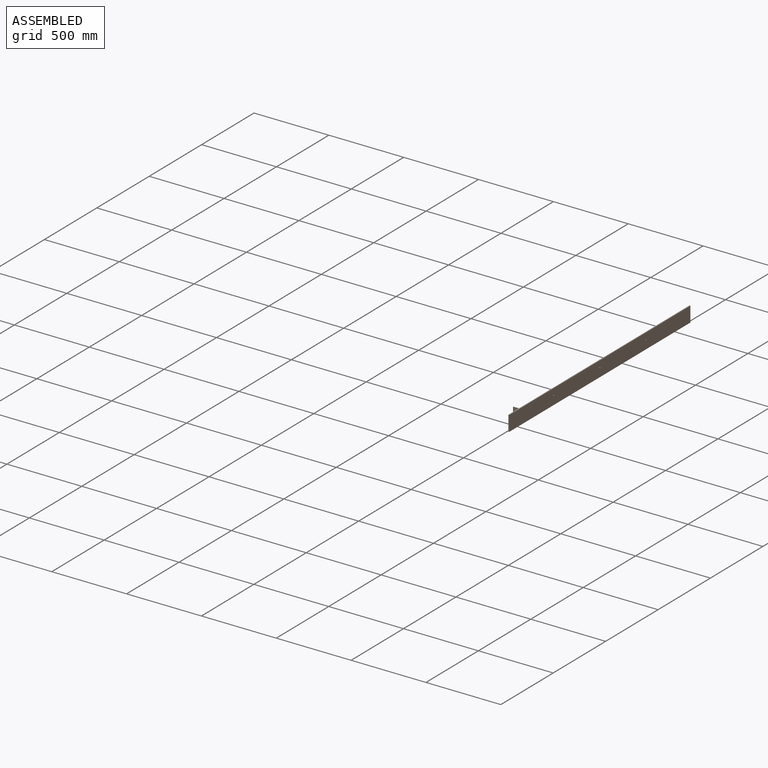
[diagram: assembled view]
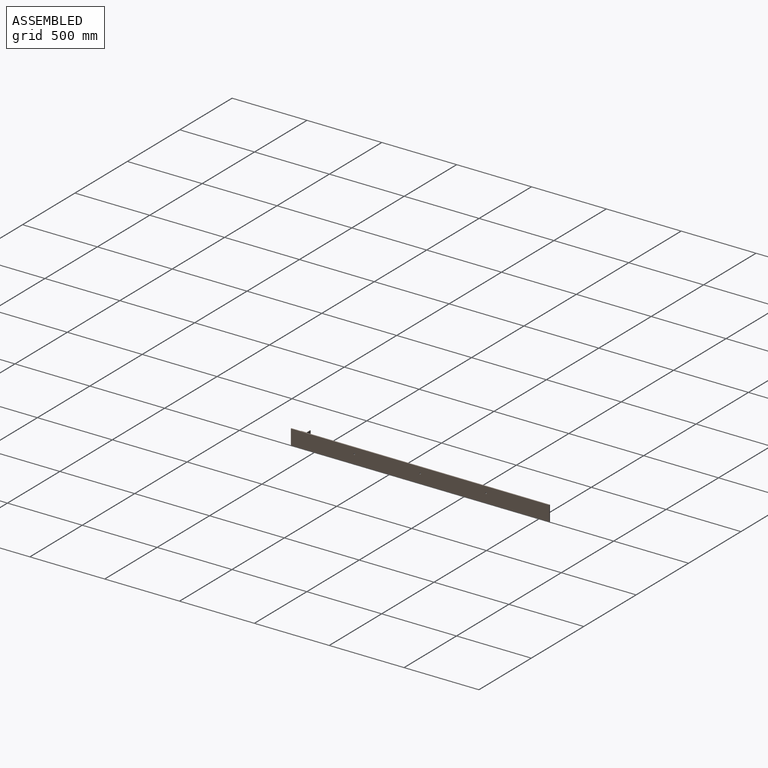
[diagram: assembled view, second angle]
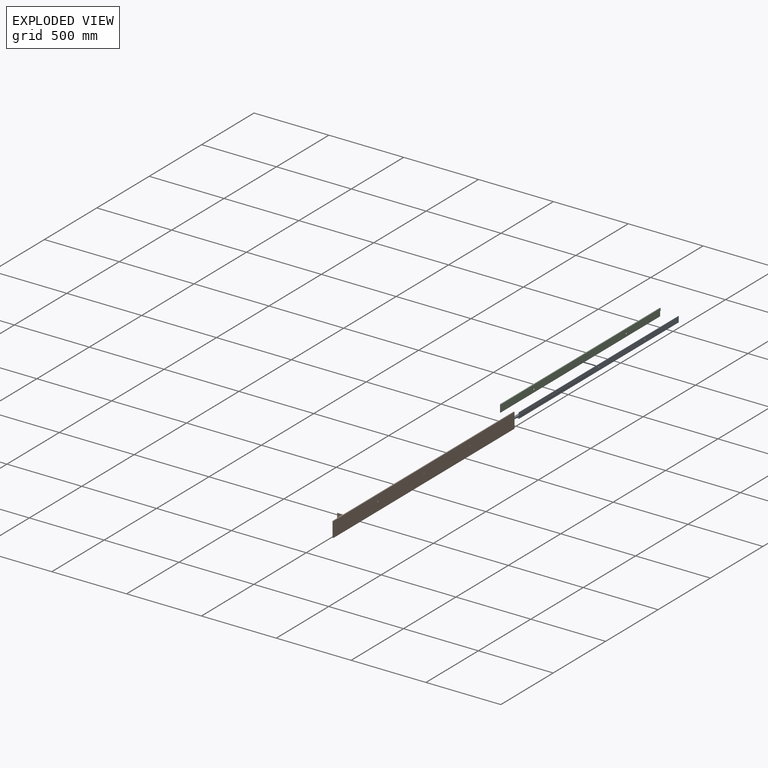
[diagram: exploded view]
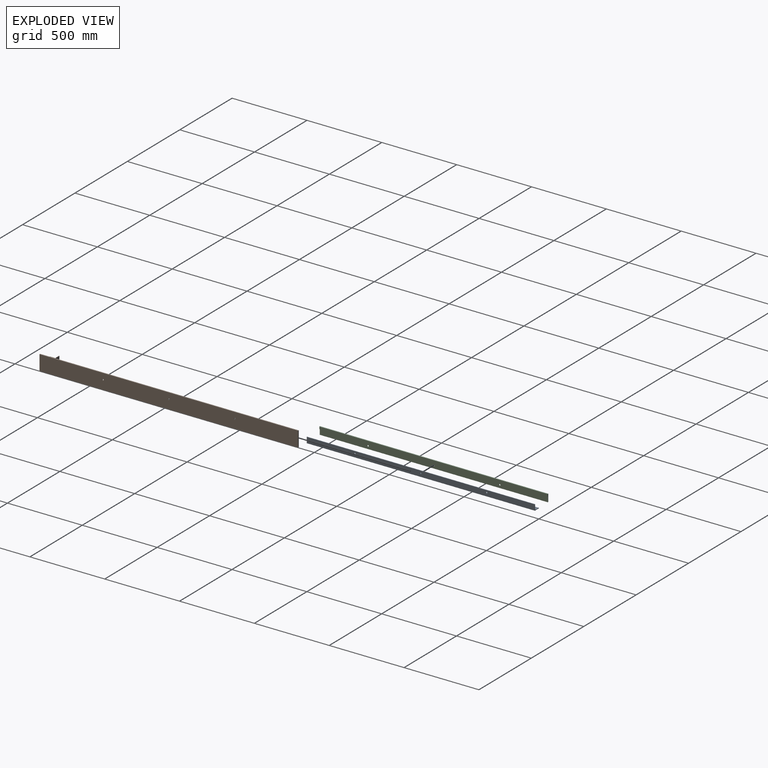
[diagram: exploded view, second angle]
ASSEMBLY  parts=3 mates=4
PART A: 11 faces, bbox 38.1x1524x38.1 mm
  f0: plane 1524x38.1mm, normal (1,0,0), area 57850.6mm2, adj f3,f4,f6,f7,f8,f9,f10
  f1: plane 1524x34.93mm, normal (-1,0,0), area 53011.9mm2, adj f4,f5,f6,f7,f8,f9,f10
  f2: plane 1524x3.18mm, normal (-1,0,0), area 4838.7mm2, adj f3,f5,f6,f7
  f3: plane 1524x38.1mm, normal (0,0,-1), area 58064.4mm2, adj f0,f2,f6,f7
  f4: plane 1524x3.18mm, normal (0,0,1), area 4838.7mm2, adj f0,f1,f6,f7
  f5: plane 1524x34.93mm, normal (0,0,1), area 53225.7mm2, adj f1,f2,f6,f7
  f6: plane 38.1x38.1mm, normal (0,-1,0), area 231.9mm2, adj f0,f1,f2,f3,f4,f5
  f7: plane 38.1x38.1mm, normal (0,1,0), area 231.9mm2, adj f0,f1,f2,f3,f4,f5
  f8: cylinder r=4.76mm len=9.53mm, axis (1,0,0), area 95mm2, adj f0,f1
  f9: cylinder r=4.76mm len=9.53mm, axis (1,0,0), area 95mm2, adj f0,f1
  f10: cylinder r=4.76mm len=9.53mm, axis (1,0,0), area 95mm2, adj f0,f1
PART B: 21 faces, bbox 44.5x1727.2x101.6 mm
  f0: plane 101.6x63.5mm, normal (-1,0,0), area 6451.6mm2, adj f2,f3,f4,f20
  f1: plane 1625.6x101.6mm, normal (-1,0,0), area 130108.6mm2, adj f2,f4,f5,f6,f7,f8,f10,f11
  f2: plane 1727.2x44.45mm, normal (0,0,1), area 11199.6mm2, adj f0,f1,f3,f7,f9,f16,f17,f18
  f3: plane 101.6x6.35mm, normal (0,-1,0), area 645.2mm2, adj f0,f2,f4,f9
  f4: plane 1727.2x44.45mm, normal (0,0,-1), area 14102.8mm2, adj f0,f1,f3,f7,f9,f11,f13,f15
  f5: cylinder r=4.76mm len=9.53mm, axis (-1,0,0), area 190mm2, adj f1,f9
  f6: cylinder r=4.76mm len=9.53mm, axis (-1,0,0), area 190mm2, adj f1,f9
  f7: plane 101.6x6.35mm, normal (0,1,0), area 645.2mm2, adj f1,f2,f4,f9
  f8: cylinder r=4.76mm len=9.53mm, axis (-1,0,0), area 190mm2, adj f1,f9
  f9: plane 1727.2x101.6mm, normal (1,0,0), area 175269.8mm2, adj f2,f3,f4,f5,f6,f7,f8
  f10: plane 914.4x38.1mm, normal (0,0,1), area 34838.6mm2, adj f1,f11,f13,f14
  f11: plane 38.1x38.1mm, normal (0,1,0), area 231.9mm2, adj f1,f4,f10,f12,f14,f15
  f12: plane 914.4x34.93mm, normal (0,0,-1), area 31935.4mm2, adj f11,f13,f14,f15
  f13: plane 38.1x38.1mm, normal (0,-1,0), area 231.9mm2, adj f1,f4,f10,f12,f14,f15
  f14: plane 914.4x3.18mm, normal (-1,0,0), area 2903.2mm2, adj f10,f11,f12,f13
  f15: plane 914.4x34.93mm, normal (-1,0,0), area 31935.4mm2, adj f4,f11,f12,f13
  f16: plane 101.6x38.1mm, normal (0,1,0), area 3871mm2, adj f1,f2,f4,f17
  f17: plane 101.6x3.18mm, normal (-1,0,0), area 322.6mm2, adj f2,f4,f16,f18
  f18: plane 101.6x34.93mm, normal (0,-1,0), area 3548.4mm2, adj f2,f4,f17,f19
  f19: plane 101.6x34.93mm, normal (-1,0,0), area 3548.4mm2, adj f2,f4,f18,f20
  f20: plane 101.6x3.18mm, normal (0,-1,0), area 322.6mm2, adj f0,f2,f4,f19
PART C: 11 faces, bbox 6.4x1524x50.8 mm
  f0: plane 1524x50.8mm, normal (-1,0,0), area 77205.4mm2, adj f2,f5,f6,f7,f8,f9,f10
  f1: plane 1524x34.93mm, normal (1,0,0), area 53011.9mm2, adj f4,f5,f6,f7,f8,f9,f10
  f2: plane 1524x6.35mm, normal (0,0,1), area 9677.4mm2, adj f0,f3,f6,f7
  f3: plane 1524x15.88mm, normal (1,0,0), area 24193.5mm2, adj f2,f4,f6,f7
  f4: plane 1524x3.18mm, normal (0,0,-1), area 4838.7mm2, adj f1,f3,f6,f7
  f5: plane 1524x3.18mm, normal (0,0,-1), area 4838.7mm2, adj f0,f1,f6,f7
  f6: plane 50.8x6.35mm, normal (0,-1,0), area 211.7mm2, adj f0,f1,f2,f3,f4,f5
  f7: plane 50.8x6.35mm, normal (0,1,0), area 211.7mm2, adj f0,f1,f2,f3,f4,f5
  f8: cylinder r=4.76mm len=9.53mm, axis (-1,0,0), area 95mm2, adj f0,f1
  f9: cylinder r=4.76mm len=9.53mm, axis (-1,0,0), area 95mm2, adj f0,f1
  f10: cylinder r=4.76mm len=9.53mm, axis (-1,0,0), area 95mm2, adj f0,f1
PLACE A at identity fixed
PLACE B t=(0.22,0,0)mm
PLACE C t=(-0.07,0,0)mm
MATE planar A.f6 <-> B.f16  axis (0,-1,0) through (34.93,-1524,3.18)mm
MATE planar B.f10 <-> A.f3  axis (0,0,1) through (19.27,-762,0)mm
MATE cylindrical C.f9 <-> A.f10  axis (-1,0,0) through (31.68,-1202.03,22.22)mm
MATE cylindrical C.f10 <-> A.f8  axis (-1,0,0) through (31.68,-321.97,22.22)mm
